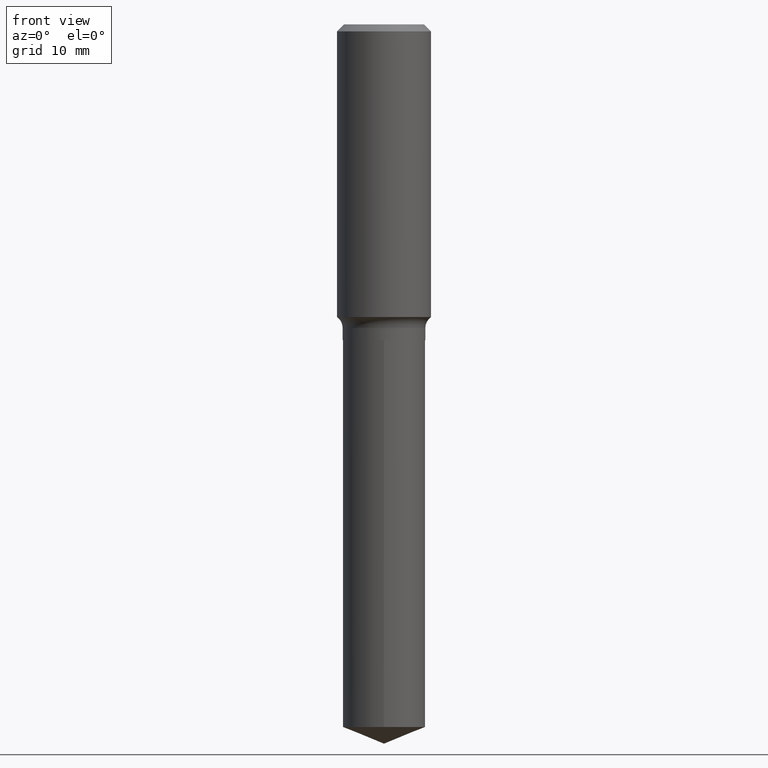
[diagram: clean part render]
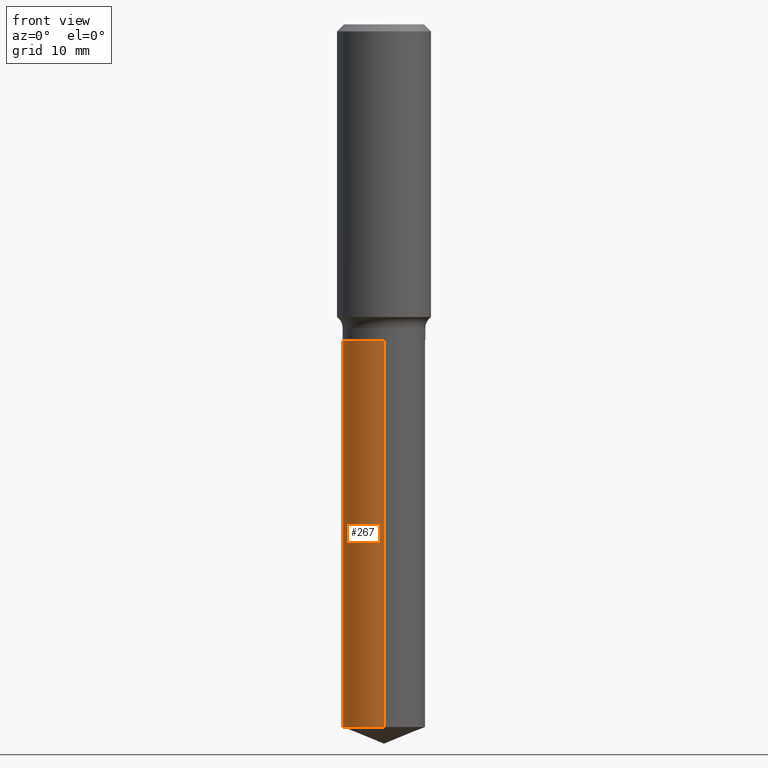
[diagram: same view with one face highlighted and labeled with its STEP entity id]
A machine part, front view. The second image highlights one B-rep face of the part: STEP entity #267.
In plain terms, the highlighted cylindrical surface (partial cylindrical patch) has radius 6.1519 mm, axis along (-0, 0, 1).
Its self-contained STEP definition (entity closure, byte-faithful):
#28 = VERTEX_POINT ( 'NONE', #238 ) ;
#52 = VERTEX_POINT ( 'NONE', #383 ) ;
#78 = AXIS2_PLACEMENT_3D ( 'NONE', #177, #327, #297 ) ;
#97 = DIRECTION ( 'NONE',  ( -6.982962677686265922E-15, -1.000000000000000000, 3.383791899666717075E-15 ) ) ;
#99 = VERTEX_POINT ( 'NONE', #459 ) ;
#104 = LINE ( 'NONE', #292, #116 ) ;
#116 = VECTOR ( 'NONE', #444, 39.37007874015748143 ) ;
#120 = EDGE_CURVE ( 'NONE', #455, #99, #414, .T. ) ;
#133 = ORIENTED_EDGE ( 'NONE', *, *, #120, .T. ) ;
#135 = FACE_OUTER_BOUND ( 'NONE', #313, .T. ) ;
#141 = CARTESIAN_POINT ( 'NONE',  ( 1.720934506011007605E-15, 0.2421999999999935593, -1.850400000000001377 ) ) ;
#142 = CYLINDRICAL_SURFACE ( 'NONE', #78, 0.2422000000000000264 ) ;
#163 = ORIENTED_EDGE ( 'NONE', *, *, #415, .F. ) ;
#177 = CARTESIAN_POINT ( 'NONE',  ( 4.525095478964977954E-29, -6.460637069395358365E-15, -1.850400000000000489 ) ) ;
#215 = CARTESIAN_POINT ( 'NONE',  ( 1.720934506011063023E-15, 0.2421999999999855935, -4.114744848102727559 ) ) ;
#238 = CARTESIAN_POINT ( 'NONE',  ( -1.691273560535568632E-15, -0.2422000000000064657, -1.850400000000000045 ) ) ;
#240 = CIRCLE ( 'NONE', #482, 0.2422000000000000264 ) ;
#261 = CARTESIAN_POINT ( 'NONE',  ( 4.525095478964978515E-29, -6.460637069395359943E-15, -1.850400000000000933 ) ) ;
#267 = ADVANCED_FACE ( 'NONE', ( #135 ), #142, .T. ) ;
#273 = CARTESIAN_POINT ( 'NONE',  ( 1.006250441776211636E-28, -1.436652012914726322E-14, -4.114744848102726671 ) ) ;
#292 = CARTESIAN_POINT ( 'NONE',  ( -1.691273560535568632E-15, -0.2422000000000064657, -1.850399999999999823 ) ) ;
#297 = DIRECTION ( 'NONE',  ( -6.982962677686265922E-15, -1.000000000000000000, 3.383791899666717075E-15 ) ) ;
#313 = EDGE_LOOP ( 'NONE', ( #163, #133, #353, #436 ) ) ;
#327 = DIRECTION ( 'NONE',  ( -2.445479514057623274E-29, 3.491466004560290354E-15, 1.000000000000000000 ) ) ;
#353 = ORIENTED_EDGE ( 'NONE', *, *, #412, .T. ) ;
#383 = CARTESIAN_POINT ( 'NONE',  ( 1.720934506011064009E-15, 0.2421999999999935871, -1.850400000000001599 ) ) ;
#391 = VECTOR ( 'NONE', #476, 39.37007874015748143 ) ;
#393 = DIRECTION ( 'NONE',  ( -2.445479514057623274E-29, 3.491466004560290354E-15, 1.000000000000000000 ) ) ;
#400 = DIRECTION ( 'NONE',  ( -2.445479514057623274E-29, 3.491466004560290354E-15, 1.000000000000000000 ) ) ;
#412 = EDGE_CURVE ( 'NONE', #99, #28, #104, .T. ) ;
#414 = CIRCLE ( 'NONE', #490, 0.2422000000000000264 ) ;
#415 = EDGE_CURVE ( 'NONE', #455, #52, #438, .T. ) ;
#421 = EDGE_CURVE ( 'NONE', #52, #28, #240, .T. ) ;
#436 = ORIENTED_EDGE ( 'NONE', *, *, #421, .F. ) ;
#438 = LINE ( 'NONE', #141, #391 ) ;
#444 = DIRECTION ( 'NONE',  ( -2.445479514057622994E-29, 3.491466004560290748E-15, 1.000000000000000000 ) ) ;
#455 = VERTEX_POINT ( 'NONE', #215 ) ;
#459 = CARTESIAN_POINT ( 'NONE',  ( -1.691273560535512820E-15, -0.2422000000000143483, -4.114744848102725783 ) ) ;
#471 = DIRECTION ( 'NONE',  ( -6.982962677686265922E-15, -1.000000000000000000, 4.511722532888956363E-15 ) ) ;
#476 = DIRECTION ( 'NONE',  ( -2.445479514057622994E-29, 3.491466004560290748E-15, 1.000000000000000000 ) ) ;
#482 = AXIS2_PLACEMENT_3D ( 'NONE', #261, #400, #97 ) ;
#490 = AXIS2_PLACEMENT_3D ( 'NONE', #273, #393, #471 ) ;